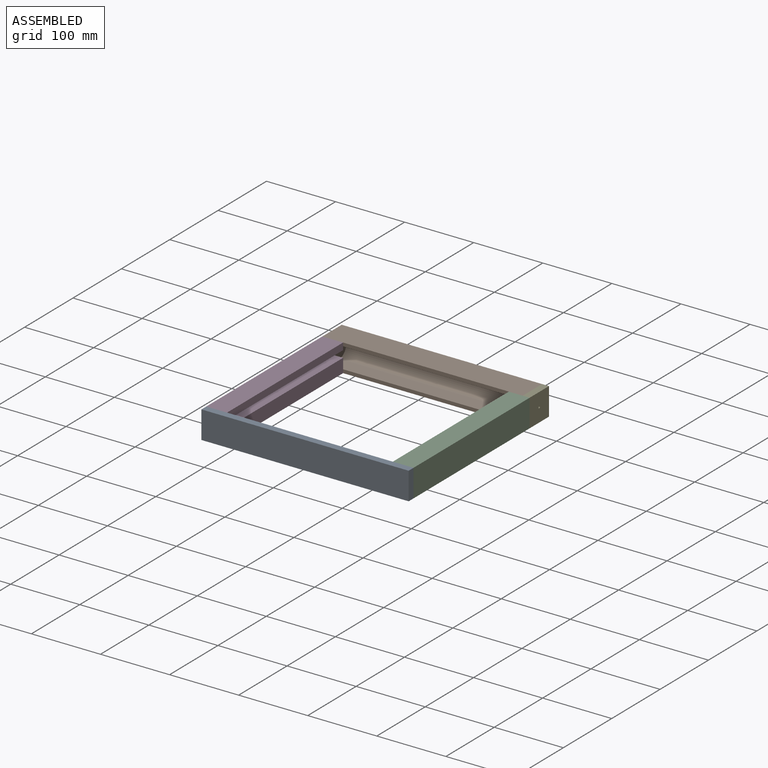
[diagram: assembled view]
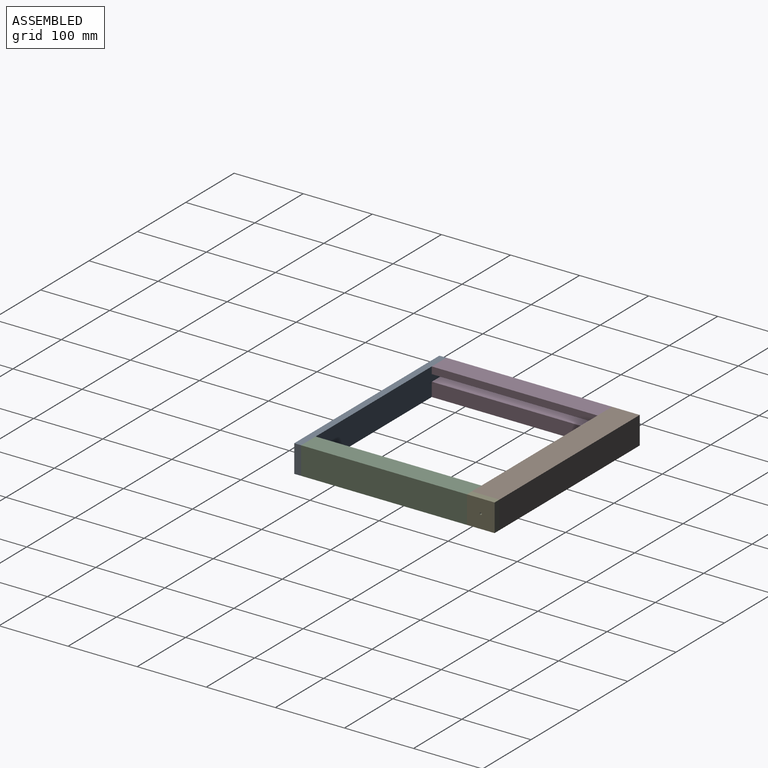
[diagram: assembled view, second angle]
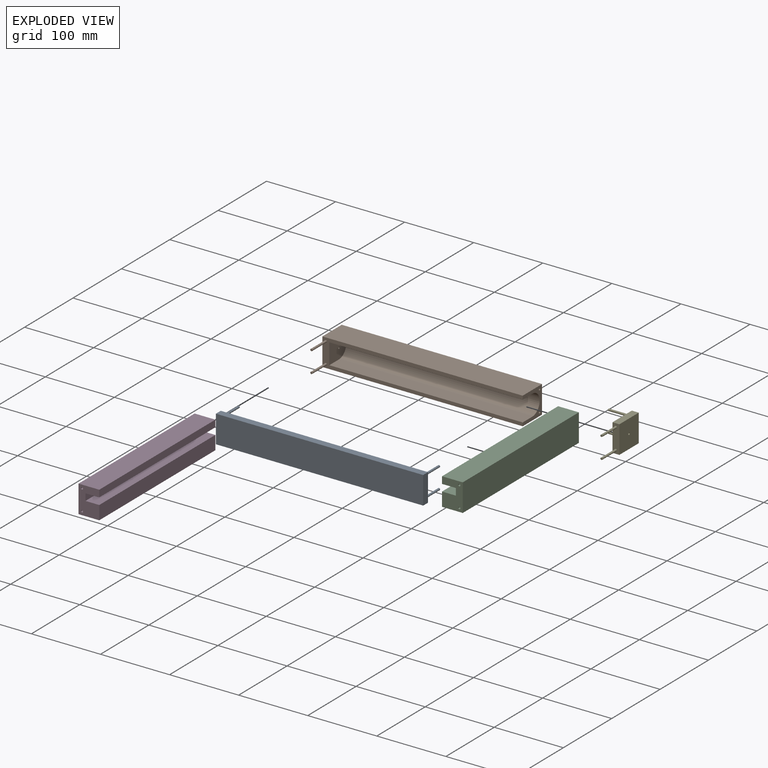
[diagram: exploded view]
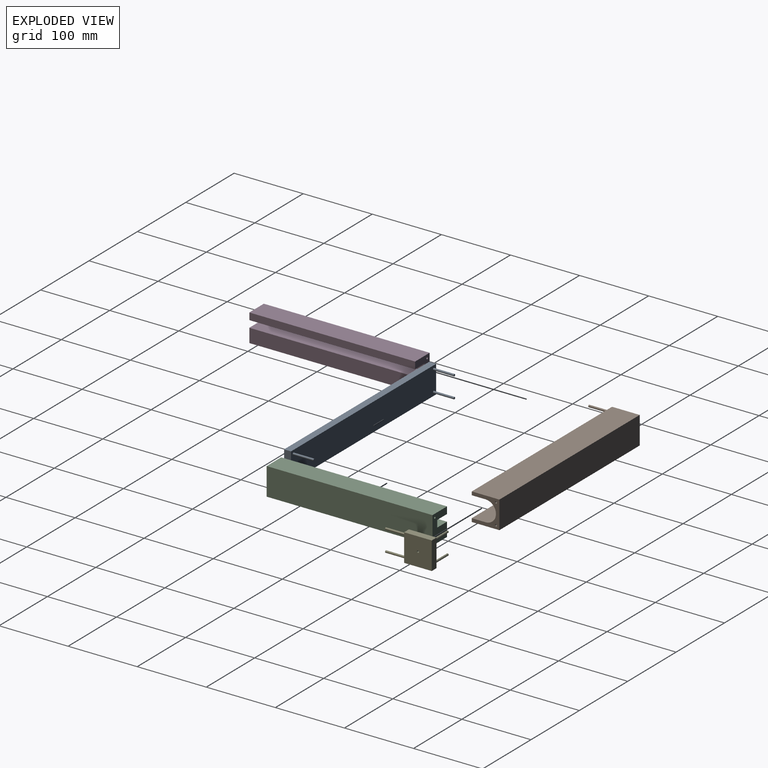
[diagram: exploded view, second angle]
ASSEMBLY  parts=5 mates=3
PART A: 14 faces, bbox 300x40x40 mm
  f0: plane 40x10mm, normal (1,0,0), area 400mm2, adj f1,f3,f4,f5
  f1: plane 300x10mm, normal (0,0,1), area 3000mm2, adj f0,f2,f4,f5
  f2: plane 40x10mm, normal (-1,0,0), area 400mm2, adj f1,f3,f4,f5
  f3: plane 300x10mm, normal (0,0,-1), area 3000mm2, adj f0,f2,f4,f5
  f4: plane 300x40mm, normal (0,-1,0), area 11971.7mm2, adj f0,f1,f2,f3,f6,f8,f10,f12
  f5: plane 300x40mm, normal (0,1,0), area 12000mm2, adj f0,f1,f2,f3
  f6: cylinder r=1.5mm len=30mm, axis (0,1,0), area 282.7mm2, adj f4,f7
  f7: plane 3x3mm, normal (0,-1,0), area 7.1mm2, adj f6
  f8: cylinder r=1.5mm len=30mm, axis (0,1,0), area 282.7mm2, adj f4,f9
  f9: plane 3x3mm, normal (0,-1,0), area 7.1mm2, adj f8
  f10: cylinder r=1.5mm len=30mm, axis (0,1,0), area 282.7mm2, adj f4,f11
  f11: plane 3x3mm, normal (0,-1,0), area 7.1mm2, adj f10
  f12: cylinder r=1.5mm len=30mm, axis (0,1,0), area 282.7mm2, adj f4,f13
  f13: plane 3x3mm, normal (0,-1,0), area 7.1mm2, adj f12
PART B: 19 faces, bbox 290x70x40 mm
  f0: plane 290x40mm, normal (0,-1,0), area 3185.9mm2, adj f4,f6,f7,f8,f9,f11,f12,f13
  f1: cylinder r=1.5mm len=30mm, axis (-1,0,0), area 282.7mm2, adj f12,f17
  f2: plane 290x40mm, normal (0,1,0), area 11600mm2, adj f4,f7,f11,f12
  f3: cylinder r=1.5mm len=30mm, axis (-1,0,0), area 282.7mm2, adj f12,f18
  f4: plane 290x40mm, normal (0,0,1), area 11600mm2, adj f0,f2,f7,f12
  f5: cylinder r=1.25mm len=10mm, axis (-1,0,0), area 78.5mm2, adj f6,f7
  f6: plane 35x30mm, normal (1,0,0), area 948.5mm2, adj f0,f5,f8,f9,f10
  f7: plane 40x40mm, normal (-1,0,0), area 1595.1mm2, adj f0,f2,f4,f5,f11
  f8: plane 280x20mm, normal (0,0,1), area 5600mm2, adj f0,f6,f10,f12
  f9: plane 280x20mm, normal (0,0,-1), area 5600mm2, adj f0,f6,f10,f12
  f10: cylinder r=15mm len=280mm, axis (-1,0,0), area 13194.7mm2, adj f6,f8,f9,f12
  f11: plane 290x40mm, normal (0,0,-1), area 11600mm2, adj f0,f2,f7,f12
  f12: plane 40x40mm, normal (1,0,0), area 632.4mm2, adj f0,f1,f2,f3,f4,f8,f9,f10
  f13: cylinder r=1.5mm len=30mm, axis (0,1,0), area 282.7mm2, adj f0,f14
  f14: plane 3x3mm, normal (0,-1,0), area 7.1mm2, adj f13
  f15: cylinder r=1.5mm len=30mm, axis (0,1,0), area 282.7mm2, adj f0,f16
  f16: plane 3x3mm, normal (0,-1,0), area 7.1mm2, adj f15
  f17: plane 3x3mm, normal (1,0,0), area 7.1mm2, adj f1
  f18: plane 3x3mm, normal (1,0,0), area 7.1mm2, adj f3
PART C: 18 faces, bbox 30x240x40 mm
  f0: cylinder r=1.5mm len=30mm, axis (0,1,0), area 282.7mm2, adj f13,f16
  f1: cylinder r=1.5mm len=30mm, axis (0,1,0), area 282.7mm2, adj f13,f14
  f2: plane 240x40mm, normal (1,0,0), area 9600mm2, adj f3,f9,f12,f13
  f3: plane 240x30mm, normal (0,0,1), area 7200mm2, adj f2,f4,f12,f13
  f4: plane 240x10mm, normal (-1,0,0), area 2400mm2, adj f3,f5,f12,f13
  f5: plane 240x20mm, normal (0,0,-1), area 4800mm2, adj f4,f6,f12,f13
  f6: plane 240x10mm, normal (-1,0,0), area 2400mm2, adj f5,f7,f12,f13
  f7: plane 240x20mm, normal (0,0,1), area 4800mm2, adj f6,f8,f12,f13
  f8: plane 240x20mm, normal (-1,0,0), area 4800mm2, adj f7,f9,f12,f13
  f9: plane 240x30mm, normal (0,0,-1), area 7200mm2, adj f2,f8,f12,f13
  f10: cylinder r=1.5mm len=30mm, axis (0,1,0), area 282.7mm2, adj f12,f17
  f11: cylinder r=1.5mm len=30mm, axis (0,1,0), area 282.7mm2, adj f12,f15
  f12: plane 40x30mm, normal (0,-1,0), area 985.9mm2, adj f2,f3,f4,f5,f6,f7,f8,f9
  f13: plane 40x30mm, normal (0,1,0), area 985.9mm2, adj f0,f1,f2,f3,f4,f5,f6,f7
  f14: plane 3x3mm, normal (0,1,0), area 7.1mm2, adj f1
  f15: plane 3x3mm, normal (0,-1,0), area 7.1mm2, adj f11
  f16: plane 3x3mm, normal (0,1,0), area 7.1mm2, adj f0
  f17: plane 3x3mm, normal (0,-1,0), area 7.1mm2, adj f10
PART D: 18 faces, bbox 30x240x40 mm
  f0: cylinder r=1.5mm len=30mm, axis (0,1,0), area 282.7mm2, adj f13,f16
  f1: cylinder r=1.5mm len=30mm, axis (0,1,0), area 282.7mm2, adj f13,f14
  f2: plane 240x30mm, normal (0,0,1), area 7200mm2, adj f3,f9,f12,f13
  f3: plane 240x40mm, normal (-1,0,0), area 9600mm2, adj f2,f4,f12,f13
  f4: plane 240x30mm, normal (0,0,-1), area 7200mm2, adj f3,f5,f12,f13
  f5: plane 240x20mm, normal (1,0,0), area 4800mm2, adj f4,f6,f12,f13
  f6: plane 240x20mm, normal (0,0,1), area 4800mm2, adj f5,f7,f12,f13
  f7: plane 240x10mm, normal (1,0,0), area 2400mm2, adj f6,f8,f12,f13
  f8: plane 240x20mm, normal (0,0,-1), area 4800mm2, adj f7,f9,f12,f13
  f9: plane 240x10mm, normal (1,0,0), area 2400mm2, adj f2,f8,f12,f13
  f10: cylinder r=1.5mm len=30mm, axis (0,1,0), area 282.7mm2, adj f12,f17
  f11: cylinder r=1.5mm len=30mm, axis (0,1,0), area 282.7mm2, adj f12,f15
  f12: plane 40x30mm, normal (0,-1,0), area 985.9mm2, adj f2,f3,f4,f5,f6,f7,f8,f9
  f13: plane 40x30mm, normal (0,1,0), area 985.9mm2, adj f0,f1,f2,f3,f4,f5,f6,f7
  f14: plane 3x3mm, normal (0,1,0), area 7.1mm2, adj f1
  f15: plane 3x3mm, normal (0,-1,0), area 7.1mm2, adj f11
  f16: plane 3x3mm, normal (0,1,0), area 7.1mm2, adj f0
  f17: plane 3x3mm, normal (0,-1,0), area 7.1mm2, adj f10
PART E: 15 faces, bbox 40x70x40 mm
  f0: plane 40x10mm, normal (0,1,0), area 400mm2, adj f1,f3,f5,f6
  f1: plane 40x10mm, normal (0,0,1), area 400mm2, adj f0,f2,f5,f6
  f2: plane 40x10mm, normal (0,-1,0), area 385.9mm2, adj f1,f3,f5,f6,f11,f13
  f3: plane 40x10mm, normal (0,0,-1), area 400mm2, adj f0,f2,f5,f6
  f4: cylinder r=1.5mm len=10mm, axis (-1,0,0), area 94.2mm2, adj f5,f6
  f5: plane 40x40mm, normal (1,0,0), area 1592.9mm2, adj f0,f1,f2,f3,f4
  f6: plane 40x40mm, normal (-1,0,0), area 1578.8mm2, adj f0,f1,f2,f3,f4,f7,f9
  f7: cylinder r=1.5mm len=30mm, axis (1,0,0), area 282.7mm2, adj f6,f8
  f8: plane 3x3mm, normal (-1,0,0), area 7.1mm2, adj f7
  f9: cylinder r=1.5mm len=30mm, axis (1,0,0), area 282.7mm2, adj f6,f10
  f10: plane 3x3mm, normal (-1,0,0), area 7.1mm2, adj f9
  f11: cylinder r=1.5mm len=30mm, axis (0,1,0), area 282.7mm2, adj f2,f12
  f12: plane 3x3mm, normal (0,-1,0), area 7.1mm2, adj f11
  f13: cylinder r=1.5mm len=30mm, axis (0,1,0), area 282.7mm2, adj f2,f14
  f14: plane 3x3mm, normal (0,-1,0), area 7.1mm2, adj f13
PLACE A rot(axis=(1,0,0),180deg) t=(12.33,-250,-139.84)mm
PLACE B rot(axis=(0,-1,0),0deg) t=(61.06,-39.6,4.17)mm
PLACE C t=(313.96,0,-63.25)mm
PLACE D rot(axis=(0,-1,0),0deg) t=(126.84,0,15.25)mm
PLACE E rot(axis=(0,-1,0),0deg) t=(351.06,-27.13,-68.6)mm
MATE fastened E.f9 <-> B.f3  axis (1,0,0) through (321.06,35,-0.93)mm
MATE fastened A.f10 <-> C.f1  axis (0,-1,0) through (356.06,-210,-30.93)mm
MATE fastened D.f0 <-> B.f13  axis (0,1,0) through (66.06,-30,-0.93)mm
